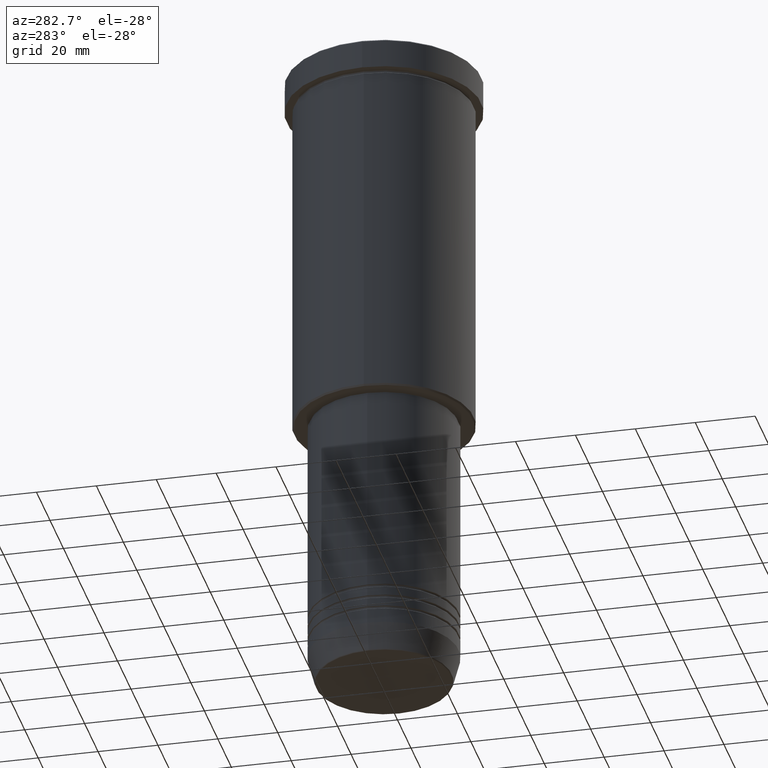
[diagram: clean part render]
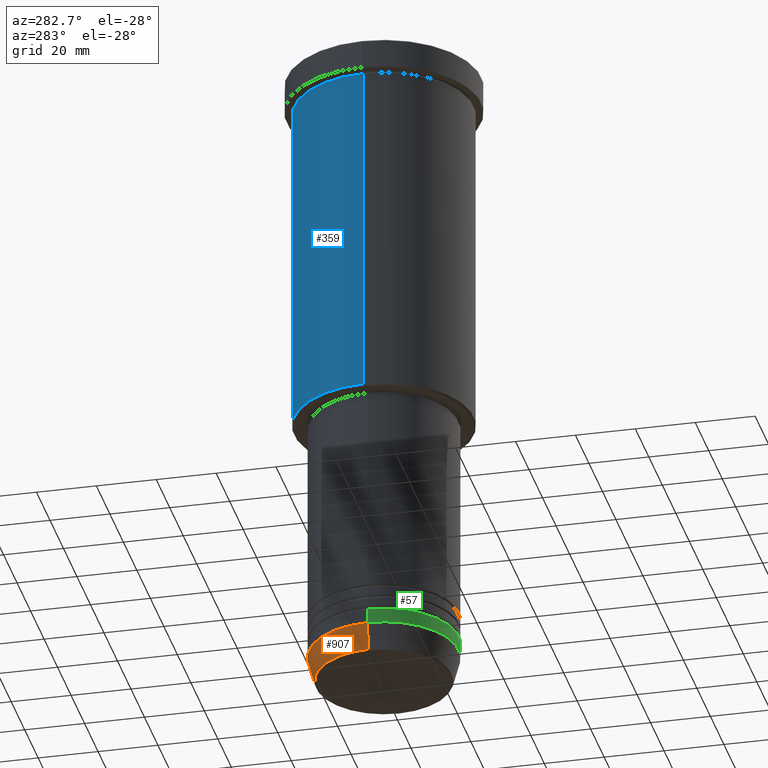
[diagram: same view with three faces highlighted in distinct colors, each labeled with its STEP entity id]
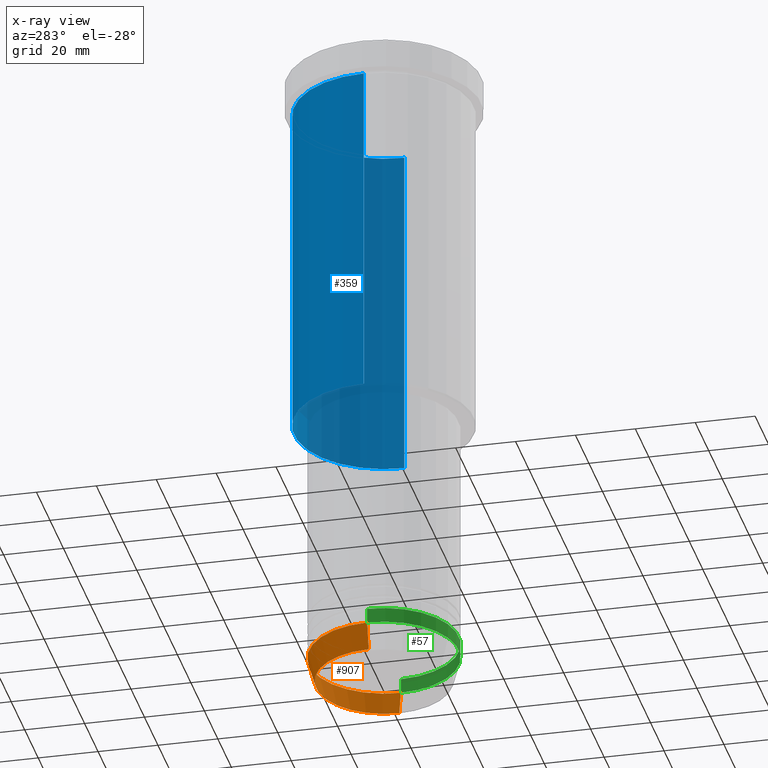
[diagram: x-ray of the same camera — body ghosted, the three highlighted faces saturated]
A machine part, auxiliary view with three faces highlighted in distinct colors.
The next image is the same camera in x-ray (body ghosted, the three faces saturated) — at least one of them is partly hidden behind the body in this view.
Their STEP definitions:

[orange] entity #907 — the highlighted conical surface has half-angle 15 deg.
#13 = CARTESIAN_POINT ( 'NONE',  ( 0.000000000000000000, 0.000000000000000000, -211.0000000000000000 ) ) ;
#22 = CARTESIAN_POINT ( 'NONE',  ( -25.00000000000000000, 3.061616997868383043E-15, -211.0000000000000000 ) ) ;
#35 = EDGE_CURVE ( 'NONE', #277, #536, #897, .T. ) ;
#54 = VERTEX_POINT ( 'NONE', #281 ) ;
#89 = FACE_OUTER_BOUND ( 'NONE', #550, .T. ) ;
#129 = DIRECTION ( 'NONE',  ( -0.2588190451025212391, 3.169619151431771721E-17, 0.9659258262890680902 ) ) ;
#132 = CARTESIAN_POINT ( 'NONE',  ( 25.00000000000000000, 0.000000000000000000, -211.0000000000000000 ) ) ;
#173 = DIRECTION ( 'NONE',  ( -0.000000000000000000, -0.000000000000000000, 1.000000000000000000 ) ) ;
#198 = VECTOR ( 'NONE', #582, 1000.000000000000114 ) ;
#213 = LINE ( 'NONE', #132, #198 ) ;
#277 = VERTEX_POINT ( 'NONE', #781 ) ;
#281 = CARTESIAN_POINT ( 'NONE',  ( -22.68775668727493766, 2.920032929279452187E-15, -219.6294095225512422 ) ) ;
#341 = CARTESIAN_POINT ( 'NONE',  ( 0.000000000000000000, 0.000000000000000000, -211.0000000000000000 ) ) ;
#395 = ORIENTED_EDGE ( 'NONE', *, *, #35, .F. ) ;
#396 = LINE ( 'NONE', #22, #993 ) ;
#424 = CARTESIAN_POINT ( 'NONE',  ( 22.68775668727493766, 0.000000000000000000, -219.6294095225512422 ) ) ;
#427 = AXIS2_PLACEMENT_3D ( 'NONE', #13, #173, #1004 ) ;
#510 = ORIENTED_EDGE ( 'NONE', *, *, #1136, .F. ) ;
#528 = ORIENTED_EDGE ( 'NONE', *, *, #823, .T. ) ;
#536 = VERTEX_POINT ( 'NONE', #891 ) ;
#545 = CONICAL_SURFACE ( 'NONE', #789, 25.00000000000000000, 0.2617993877991499629 ) ;
#550 = EDGE_LOOP ( 'NONE', ( #528, #999, #395, #510 ) ) ;
#582 = DIRECTION ( 'NONE',  ( 0.2588190451025212391, 0.000000000000000000, 0.9659258262890680902 ) ) ;
#610 = EDGE_CURVE ( 'NONE', #54, #536, #396, .T. ) ;
#612 = CARTESIAN_POINT ( 'NONE',  ( 0.000000000000000000, 0.000000000000000000, -219.6294095225512422 ) ) ;
#699 = DIRECTION ( 'NONE',  ( 1.000000000000000000, 0.000000000000000000, 0.000000000000000000 ) ) ;
#746 = DIRECTION ( 'NONE',  ( 1.000000000000000000, 0.000000000000000000, 0.000000000000000000 ) ) ;
#769 = AXIS2_PLACEMENT_3D ( 'NONE', #612, #950, #699 ) ;
#781 = CARTESIAN_POINT ( 'NONE',  ( 25.00000000000000000, 0.000000000000000000, -211.0000000000000000 ) ) ;
#789 = AXIS2_PLACEMENT_3D ( 'NONE', #341, #1070, #746 ) ;
#804 = VERTEX_POINT ( 'NONE', #424 ) ;
#823 = EDGE_CURVE ( 'NONE', #804, #54, #1014, .T. ) ;
#891 = CARTESIAN_POINT ( 'NONE',  ( -25.00000000000000000, 3.061616997868383043E-15, -211.0000000000000000 ) ) ;
#897 = CIRCLE ( 'NONE', #427, 25.00000000000000000 ) ;
#907 = ADVANCED_FACE ( 'NONE', ( #89 ), #545, .T. ) ;
#950 = DIRECTION ( 'NONE',  ( -0.000000000000000000, -0.000000000000000000, 1.000000000000000000 ) ) ;
#993 = VECTOR ( 'NONE', #129, 1000.000000000000114 ) ;
#999 = ORIENTED_EDGE ( 'NONE', *, *, #610, .T. ) ;
#1004 = DIRECTION ( 'NONE',  ( 1.000000000000000000, 0.000000000000000000, 0.000000000000000000 ) ) ;
#1014 = CIRCLE ( 'NONE', #769, 22.68775668727493766 ) ;
#1070 = DIRECTION ( 'NONE',  ( -0.000000000000000000, -0.000000000000000000, 1.000000000000000000 ) ) ;
#1136 = EDGE_CURVE ( 'NONE', #804, #277, #213, .T. ) ;

[blue] entity #359 — the highlighted cylindrical surface (partial cylindrical patch) has radius 30 mm, axis along (-0, -0, 1).
#24 = DIRECTION ( 'NONE',  ( -0.000000000000000000, -0.000000000000000000, 1.000000000000000000 ) ) ;
#56 = LINE ( 'NONE', #962, #1133 ) ;
#99 = ORIENTED_EDGE ( 'NONE', *, *, #872, .T. ) ;
#100 = CARTESIAN_POINT ( 'NONE',  ( 0.000000000000000000, 0.000000000000000000, -10.99999999999999289 ) ) ;
#120 = VECTOR ( 'NONE', #247, 1000.000000000000000 ) ;
#127 = EDGE_LOOP ( 'NONE', ( #282, #99, #226, #1110 ) ) ;
#223 = DIRECTION ( 'NONE',  ( -1.000000000000000000, 0.000000000000000000, 0.000000000000000000 ) ) ;
#226 = ORIENTED_EDGE ( 'NONE', *, *, #893, .F. ) ;
#230 = FACE_OUTER_BOUND ( 'NONE', #127, .T. ) ;
#242 = CYLINDRICAL_SURFACE ( 'NONE', #680, 30.00000000000000000 ) ;
#247 = DIRECTION ( 'NONE',  ( -0.000000000000000000, -0.000000000000000000, 1.000000000000000000 ) ) ;
#249 = VERTEX_POINT ( 'NONE', #286 ) ;
#266 = EDGE_CURVE ( 'NONE', #1127, #249, #294, .T. ) ;
#282 = ORIENTED_EDGE ( 'NONE', *, *, #1112, .T. ) ;
#286 = CARTESIAN_POINT ( 'NONE',  ( 30.00000000000000000, 0.000000000000000000, -10.99999999999999289 ) ) ;
#292 = AXIS2_PLACEMENT_3D ( 'NONE', #100, #551, #912 ) ;
#294 = LINE ( 'NONE', #798, #120 ) ;
#359 = ADVANCED_FACE ( 'NONE', ( #230 ), #242, .T. ) ;
#401 = DIRECTION ( 'NONE',  ( -0.000000000000000000, -0.000000000000000000, 1.000000000000000000 ) ) ;
#432 = AXIS2_PLACEMENT_3D ( 'NONE', #931, #24, #223 ) ;
#525 = CARTESIAN_POINT ( 'NONE',  ( 0.000000000000000000, 0.000000000000000000, 0.000000000000000000 ) ) ;
#551 = DIRECTION ( 'NONE',  ( -0.000000000000000000, -0.000000000000000000, 1.000000000000000000 ) ) ;
#579 = CARTESIAN_POINT ( 'NONE',  ( -30.00000000000000000, 3.673940397442059178E-15, -10.99999999999999289 ) ) ;
#608 = DIRECTION ( 'NONE',  ( 1.000000000000000000, 0.000000000000000000, 0.000000000000000000 ) ) ;
#609 = VERTEX_POINT ( 'NONE', #743 ) ;
#677 = VERTEX_POINT ( 'NONE', #579 ) ;
#680 = AXIS2_PLACEMENT_3D ( 'NONE', #525, #792, #608 ) ;
#743 = CARTESIAN_POINT ( 'NONE',  ( -30.00000000000000000, 3.673940397442059178E-15, -125.5000000000000000 ) ) ;
#792 = DIRECTION ( 'NONE',  ( -0.000000000000000000, -0.000000000000000000, 1.000000000000000000 ) ) ;
#798 = CARTESIAN_POINT ( 'NONE',  ( 30.00000000000000000, 0.000000000000000000, 0.000000000000000000 ) ) ;
#808 = CIRCLE ( 'NONE', #292, 30.00000000000000000 ) ;
#846 = CIRCLE ( 'NONE', #432, 30.00000000000000000 ) ;
#872 = EDGE_CURVE ( 'NONE', #609, #677, #56, .T. ) ;
#893 = EDGE_CURVE ( 'NONE', #249, #677, #808, .T. ) ;
#912 = DIRECTION ( 'NONE',  ( 1.000000000000000000, 0.000000000000000000, 0.000000000000000000 ) ) ;
#931 = CARTESIAN_POINT ( 'NONE',  ( 0.000000000000000000, 0.000000000000000000, -125.5000000000000000 ) ) ;
#962 = CARTESIAN_POINT ( 'NONE',  ( -30.00000000000000000, 3.673940397442059178E-15, 0.000000000000000000 ) ) ;
#1021 = CARTESIAN_POINT ( 'NONE',  ( 30.00000000000000000, 0.000000000000000000, -125.5000000000000000 ) ) ;
#1110 = ORIENTED_EDGE ( 'NONE', *, *, #266, .F. ) ;
#1112 = EDGE_CURVE ( 'NONE', #1127, #609, #846, .T. ) ;
#1127 = VERTEX_POINT ( 'NONE', #1021 ) ;
#1133 = VECTOR ( 'NONE', #401, 1000.000000000000000 ) ;

[green] entity #57 — the highlighted cylindrical surface (partial cylindrical patch) has radius 25 mm, axis along (-0, -0, 1).
#17 = DIRECTION ( 'NONE',  ( 1.000000000000000000, 0.000000000000000000, 0.000000000000000000 ) ) ;
#19 = VERTEX_POINT ( 'NONE', #803 ) ;
#31 = VECTOR ( 'NONE', #1102, 1000.000000000000000 ) ;
#57 = ADVANCED_FACE ( 'NONE', ( #810 ), #555, .T. ) ;
#70 = DIRECTION ( 'NONE',  ( -0.000000000000000000, -0.000000000000000000, 1.000000000000000000 ) ) ;
#77 = DIRECTION ( 'NONE',  ( 1.000000000000000000, 0.000000000000000000, 0.000000000000000000 ) ) ;
#82 = ORIENTED_EDGE ( 'NONE', *, *, #649, .T. ) ;
#83 = CIRCLE ( 'NONE', #748, 25.00000000000000000 ) ;
#85 = AXIS2_PLACEMENT_3D ( 'NONE', #193, #70, #1093 ) ;
#88 = ORIENTED_EDGE ( 'NONE', *, *, #568, .F. ) ;
#193 = CARTESIAN_POINT ( 'NONE',  ( 0.000000000000000000, 0.000000000000000000, -211.0000000000000000 ) ) ;
#277 = VERTEX_POINT ( 'NONE', #781 ) ;
#297 = LINE ( 'NONE', #753, #31 ) ;
#358 = ORIENTED_EDGE ( 'NONE', *, *, #617, .F. ) ;
#384 = EDGE_LOOP ( 'NONE', ( #358, #393, #82, #88 ) ) ;
#393 = ORIENTED_EDGE ( 'NONE', *, *, #1024, .T. ) ;
#486 = VECTOR ( 'NONE', #1121, 1000.000000000000000 ) ;
#536 = VERTEX_POINT ( 'NONE', #891 ) ;
#542 = AXIS2_PLACEMENT_3D ( 'NONE', #998, #627, #77 ) ;
#555 = CYLINDRICAL_SURFACE ( 'NONE', #542, 25.00000000000000000 ) ;
#568 = EDGE_CURVE ( 'NONE', #19, #692, #83, .T. ) ;
#569 = LINE ( 'NONE', #820, #486 ) ;
#617 = EDGE_CURVE ( 'NONE', #536, #19, #569, .T. ) ;
#627 = DIRECTION ( 'NONE',  ( -0.000000000000000000, -0.000000000000000000, 1.000000000000000000 ) ) ;
#642 = CARTESIAN_POINT ( 'NONE',  ( 0.000000000000000000, 0.000000000000000000, -206.0000000000000000 ) ) ;
#648 = CARTESIAN_POINT ( 'NONE',  ( 25.00000000000000000, 0.000000000000000000, -206.0000000000000000 ) ) ;
#649 = EDGE_CURVE ( 'NONE', #277, #692, #297, .T. ) ;
#692 = VERTEX_POINT ( 'NONE', #648 ) ;
#748 = AXIS2_PLACEMENT_3D ( 'NONE', #642, #1002, #17 ) ;
#753 = CARTESIAN_POINT ( 'NONE',  ( 25.00000000000000000, 0.000000000000000000, 0.000000000000000000 ) ) ;
#781 = CARTESIAN_POINT ( 'NONE',  ( 25.00000000000000000, 0.000000000000000000, -211.0000000000000000 ) ) ;
#803 = CARTESIAN_POINT ( 'NONE',  ( -25.00000000000000000, 3.061616997868383043E-15, -206.0000000000000000 ) ) ;
#810 = FACE_OUTER_BOUND ( 'NONE', #384, .T. ) ;
#820 = CARTESIAN_POINT ( 'NONE',  ( -25.00000000000000000, 3.061616997868383043E-15, 0.000000000000000000 ) ) ;
#891 = CARTESIAN_POINT ( 'NONE',  ( -25.00000000000000000, 3.061616997868383043E-15, -211.0000000000000000 ) ) ;
#980 = CIRCLE ( 'NONE', #85, 25.00000000000000000 ) ;
#998 = CARTESIAN_POINT ( 'NONE',  ( 0.000000000000000000, 0.000000000000000000, 0.000000000000000000 ) ) ;
#1002 = DIRECTION ( 'NONE',  ( -0.000000000000000000, -0.000000000000000000, 1.000000000000000000 ) ) ;
#1024 = EDGE_CURVE ( 'NONE', #536, #277, #980, .T. ) ;
#1093 = DIRECTION ( 'NONE',  ( 1.000000000000000000, 0.000000000000000000, 0.000000000000000000 ) ) ;
#1102 = DIRECTION ( 'NONE',  ( -0.000000000000000000, -0.000000000000000000, 1.000000000000000000 ) ) ;
#1121 = DIRECTION ( 'NONE',  ( -0.000000000000000000, -0.000000000000000000, 1.000000000000000000 ) ) ;